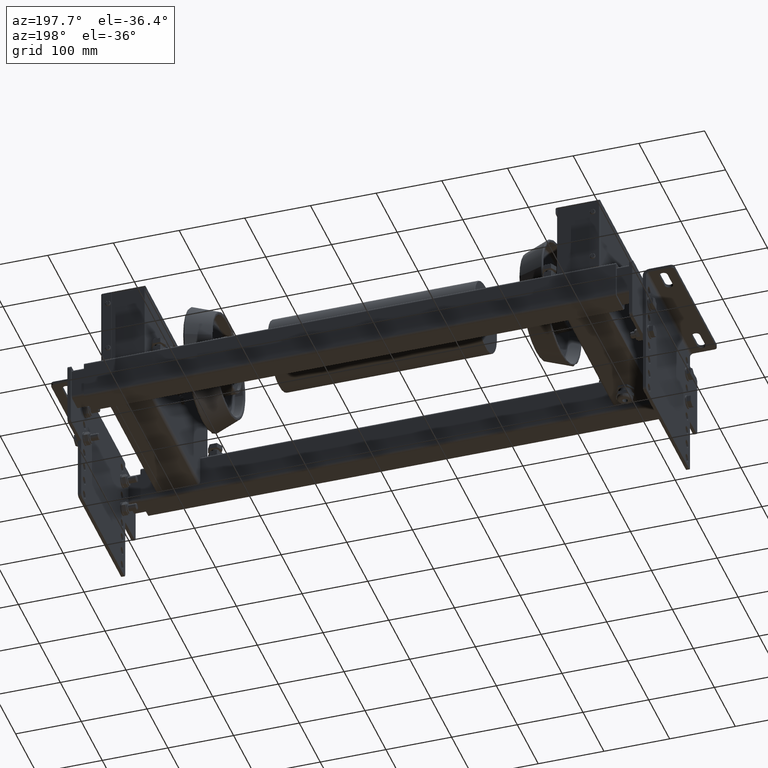
[diagram: clean part render]
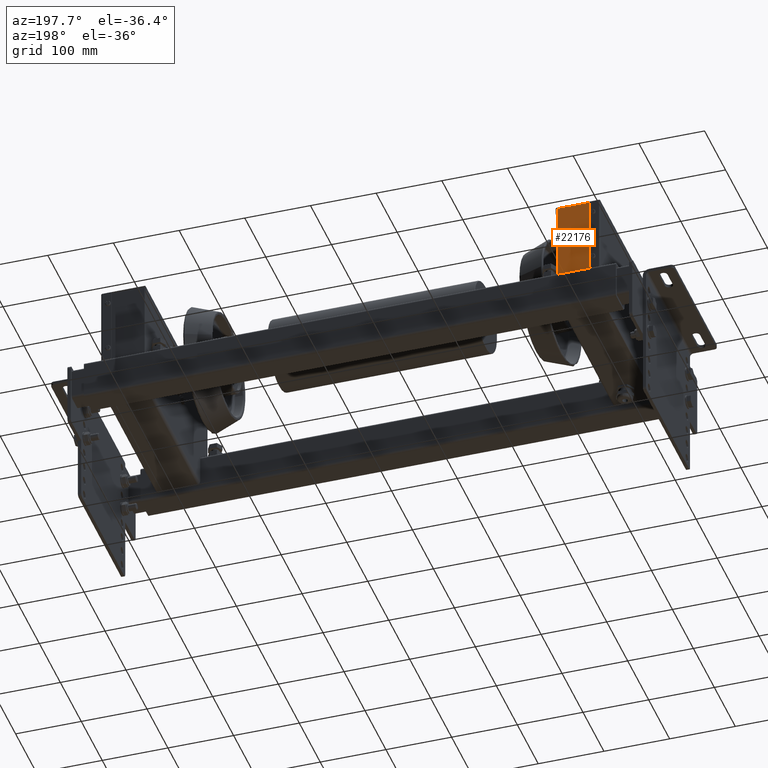
[diagram: same view with one face highlighted and labeled with its STEP entity id]
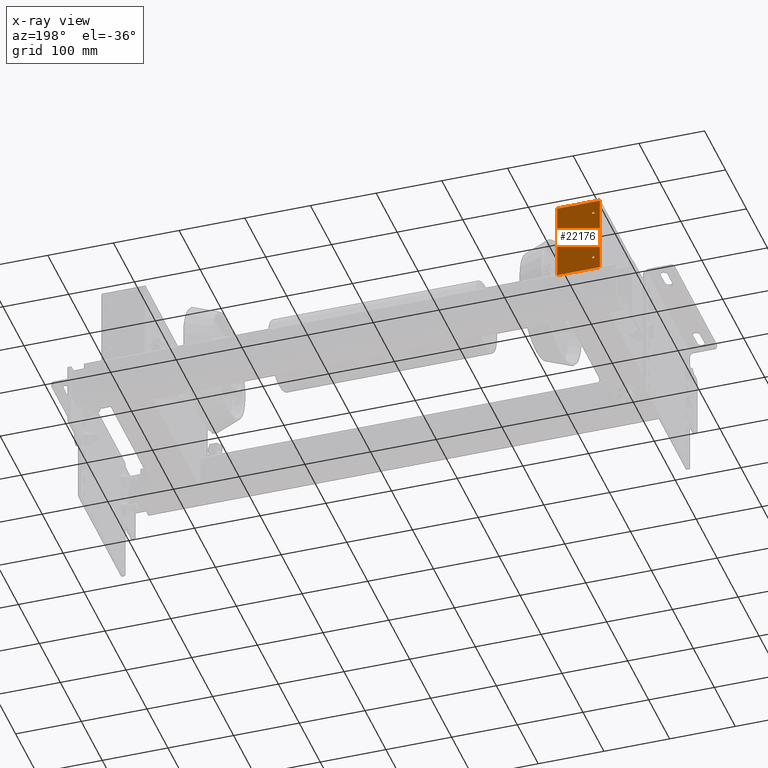
[diagram: x-ray of the same camera — body ghosted, the highlighted face saturated]
A machine part, auxiliary view. The second image highlights one B-rep face of the part: STEP entity #22176.
The next image is the same camera in x-ray: the body ghosted, the highlighted face saturated — about 0% of this face is hidden behind the body in this view.
In plain terms, the highlighted planar face has unit normal (-0, 1, -0).
Its self-contained STEP definition (entity closure, byte-faithful):
#20808=CARTESIAN_POINT('',(-150.000000000000910,65.000000000000227,55.250000000000000));
#20809=VERTEX_POINT('',#20808);
#20818=CARTESIAN_POINT('',(-150.000000000000910,65.000000000000227,51.750000000000000));
#20819=VERTEX_POINT('',#20818);
#20820=CARTESIAN_POINT('',(-150.000000000000910,65.000000000000227,53.500000000000000));
#20821=DIRECTION('',(1.0,0.0,0.0));
#20822=DIRECTION('',(0.0,0.0,1.0));
#20823=AXIS2_PLACEMENT_3D('',#20820,#20821,#20822);
#20824=CIRCLE('',#20823,1.750000000000000);
#20825=EDGE_CURVE('',#20819,#20809,#20824,.T.);
#21060=CARTESIAN_POINT('',(-150.000000000000940,-14.999999999999773,55.250000000000000));
#21061=VERTEX_POINT('',#21060);
#21070=CARTESIAN_POINT('',(-150.000000000000880,-14.999999999999773,51.750000000000000));
#21071=VERTEX_POINT('',#21070);
#21072=CARTESIAN_POINT('',(-150.000000000000880,-14.999999999999773,53.500000000000000));
#21073=DIRECTION('',(1.0,0.0,0.0));
#21074=DIRECTION('',(0.0,0.0,1.0));
#21075=AXIS2_PLACEMENT_3D('',#21072,#21073,#21074);
#21076=CIRCLE('',#21075,1.750000000000000);
#21077=EDGE_CURVE('',#21071,#21061,#21076,.T.);
#21317=CARTESIAN_POINT('',(-150.000000000000880,-14.999999999999773,53.500000000000000));
#21318=DIRECTION('',(1.0,0.0,0.0));
#21319=DIRECTION('',(0.0,0.0,1.0));
#21320=AXIS2_PLACEMENT_3D('',#21317,#21318,#21319);
#21321=CIRCLE('',#21320,1.750000000000000);
#21322=EDGE_CURVE('',#21061,#21071,#21321,.T.);
#21449=CARTESIAN_POINT('',(-150.000000000000910,65.000000000000227,53.500000000000000));
#21450=DIRECTION('',(1.0,0.0,0.0));
#21451=DIRECTION('',(0.0,0.0,1.0));
#21452=AXIS2_PLACEMENT_3D('',#21449,#21450,#21451);
#21453=CIRCLE('',#21452,1.750000000000000);
#21454=EDGE_CURVE('',#20809,#20819,#21453,.T.);
#21619=CARTESIAN_POINT('',(-150.000000000000910,-34.999999999999773,63.500000000000000));
#21620=VERTEX_POINT('',#21619);
#21621=CARTESIAN_POINT('',(-150.000000000000910,85.000000000000227,63.500000000000000));
#21622=VERTEX_POINT('',#21621);
#21623=CARTESIAN_POINT('',(-150.000000000000910,-34.999999999999773,63.500000000000000));
#21624=DIRECTION('',(0.0,1.0,0.0));
#21625=VECTOR('',#21624,120.0);
#21626=LINE('',#21623,#21625);
#21627=EDGE_CURVE('',#21620,#21622,#21626,.T.);
#21754=CARTESIAN_POINT('',(-150.000000000000910,85.000000000000227,-1.500000000000000));
#21755=VERTEX_POINT('',#21754);
#21762=CARTESIAN_POINT('',(-150.000000000000910,85.000000000000227,-1.500000000000000));
#21763=DIRECTION('',(0.0,0.0,1.0));
#21764=VECTOR('',#21763,65.0);
#21765=LINE('',#21762,#21764);
#21766=EDGE_CURVE('',#21755,#21622,#21765,.T.);
#21820=CARTESIAN_POINT('',(-150.000000000000910,-34.999999999999773,-1.500000000000000));
#21821=VERTEX_POINT('',#21820);
#21828=CARTESIAN_POINT('',(-150.000000000000910,-34.999999999999773,-1.500000000000000));
#21829=DIRECTION('',(0.0,1.0,0.0));
#21830=VECTOR('',#21829,120.0);
#21831=LINE('',#21828,#21830);
#21832=EDGE_CURVE('',#21821,#21755,#21831,.T.);
#22148=CARTESIAN_POINT('',(-150.000000000000910,-34.999999999999773,-1.500000000000000));
#22149=DIRECTION('',(0.0,0.0,1.0));
#22150=VECTOR('',#22149,65.0);
#22151=LINE('',#22148,#22150);
#22152=EDGE_CURVE('',#21821,#21620,#22151,.T.);
#22157=CARTESIAN_POINT('',(-150.000000000000910,-94.999999999999773,-1.500000000000000));
#22158=DIRECTION('',(-1.0,0.0,0.0));
#22159=DIRECTION('',(0.0,0.0,1.0));
#22160=AXIS2_PLACEMENT_3D('',#22157,#22158,#22159);
#22161=PLANE('',#22160);
#22162=ORIENTED_EDGE('',*,*,#21766,.F.);
#22163=ORIENTED_EDGE('',*,*,#21832,.F.);
#22164=ORIENTED_EDGE('',*,*,#22152,.T.);
#22165=ORIENTED_EDGE('',*,*,#21627,.T.);
#22166=EDGE_LOOP('',(#22162,#22163,#22164,#22165));
#22167=FACE_OUTER_BOUND('',#22166,.T.);
#22168=ORIENTED_EDGE('',*,*,#21322,.T.);
#22169=ORIENTED_EDGE('',*,*,#21077,.T.);
#22170=EDGE_LOOP('',(#22168,#22169));
#22171=FACE_BOUND('',#22170,.T.);
#22172=ORIENTED_EDGE('',*,*,#21454,.T.);
#22173=ORIENTED_EDGE('',*,*,#20825,.T.);
#22174=EDGE_LOOP('',(#22172,#22173));
#22175=FACE_BOUND('',#22174,.T.);
#22176=ADVANCED_FACE('',(#22167,#22171,#22175),#22161,.T.);